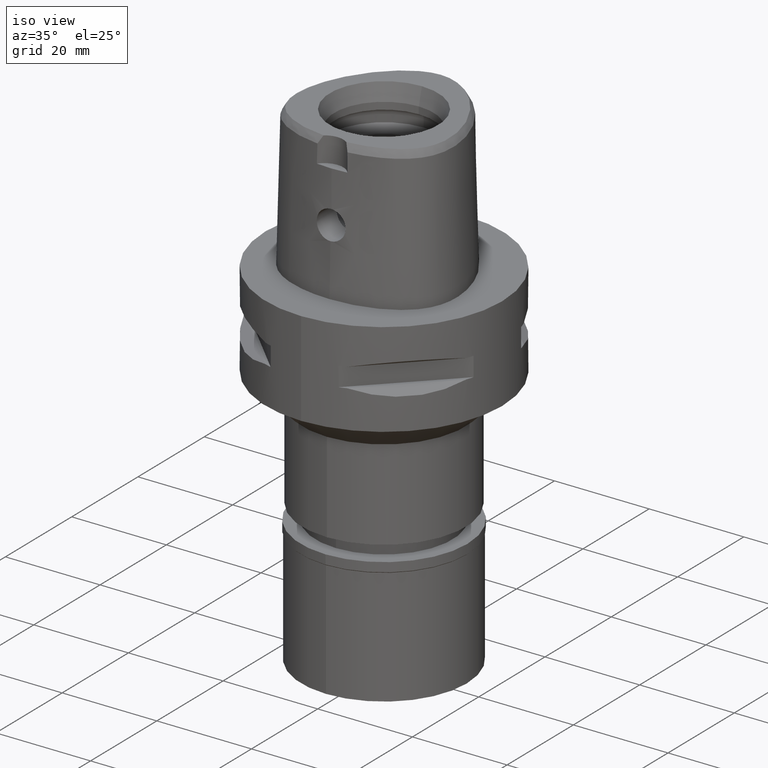
[diagram: clean part render]
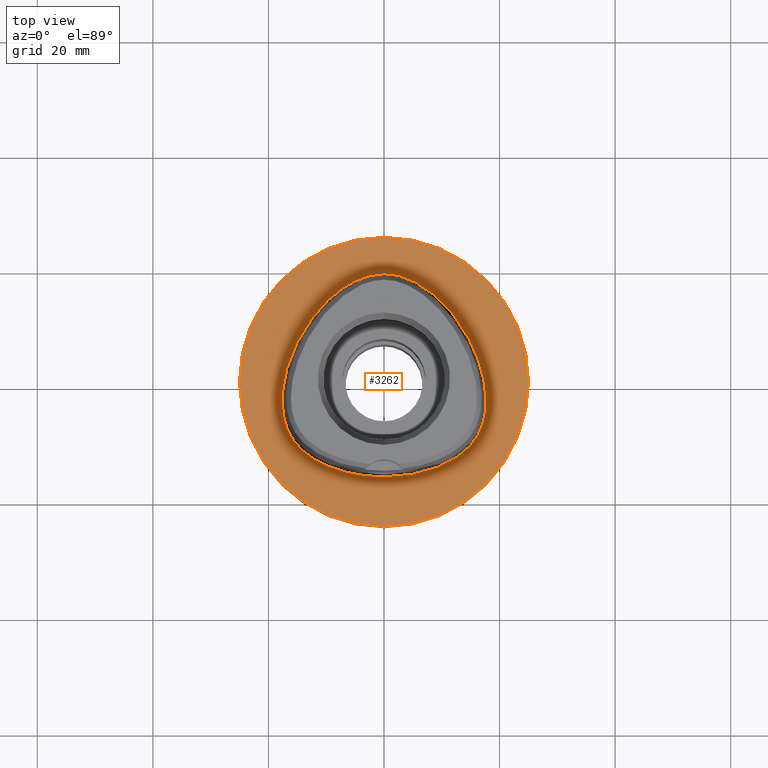
[diagram: tour spotlight — one face highlighted and labeled with its STEP entity id]
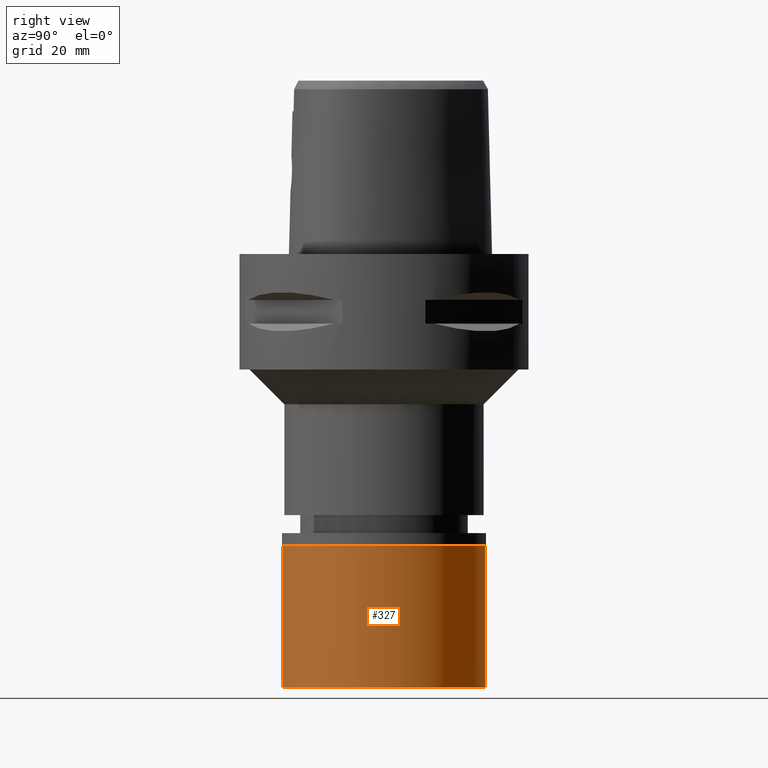
[diagram: tour spotlight — one face highlighted and labeled with its STEP entity id]
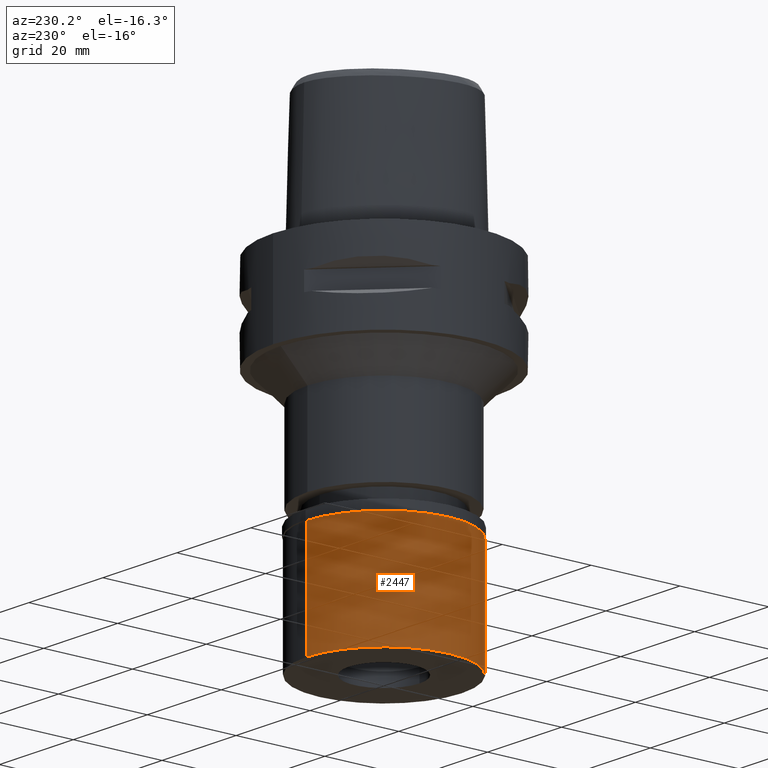
[diagram: tour spotlight — one face highlighted and labeled with its STEP entity id]
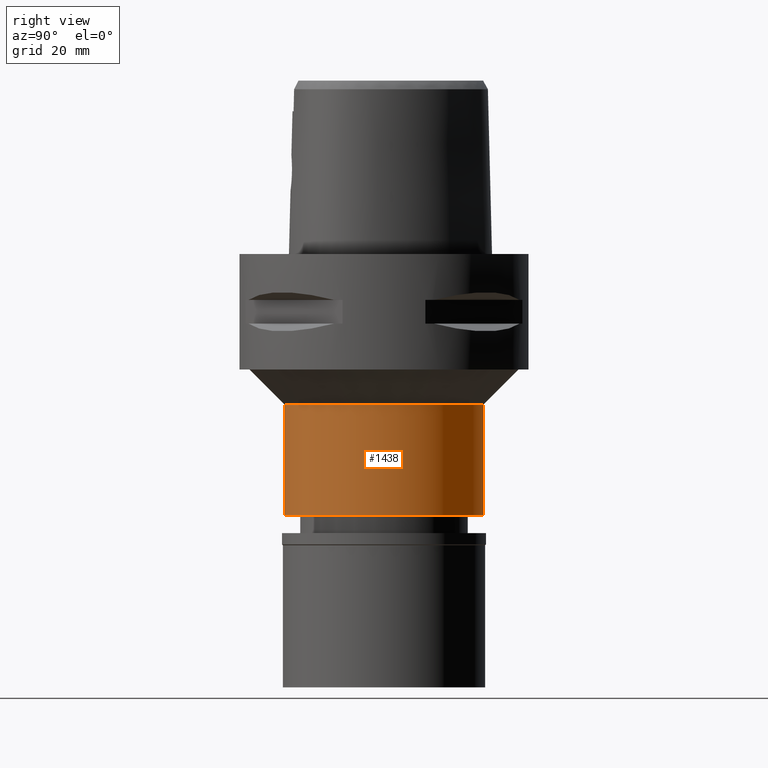
[diagram: tour spotlight — one face highlighted and labeled with its STEP entity id]
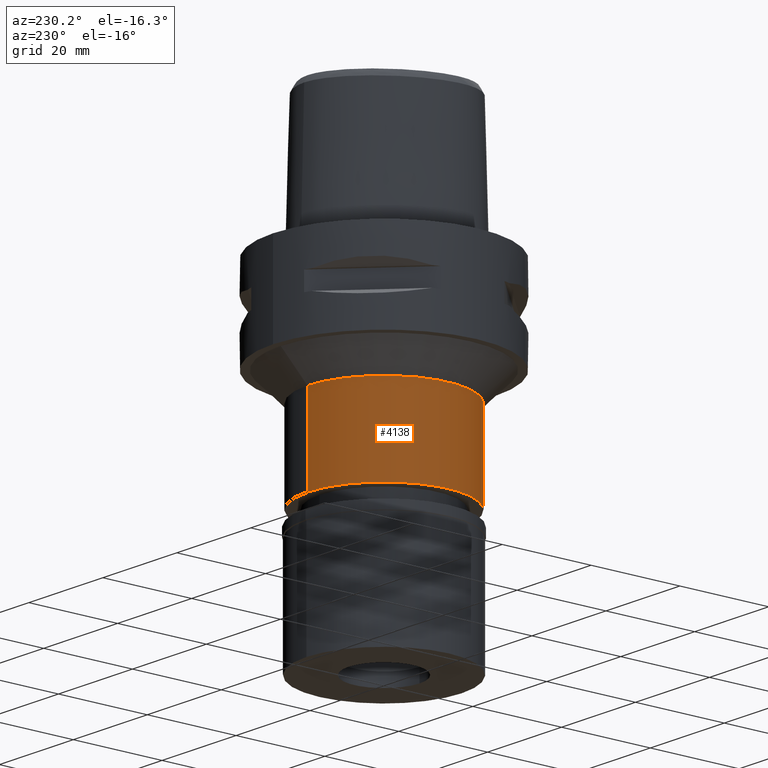
[diagram: tour spotlight — one face highlighted and labeled with its STEP entity id]
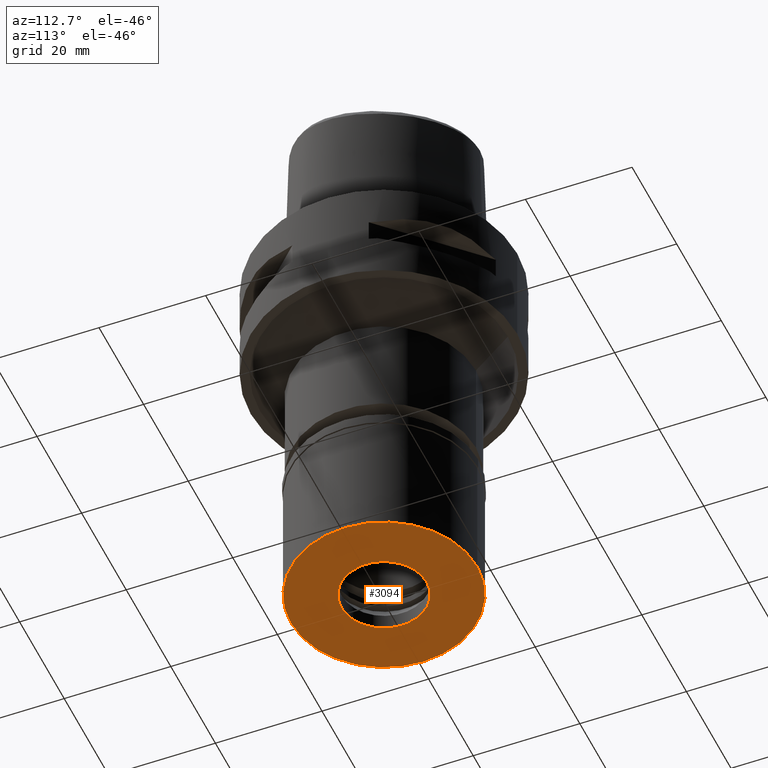
[diagram: tour spotlight — one face highlighted and labeled with its STEP entity id]
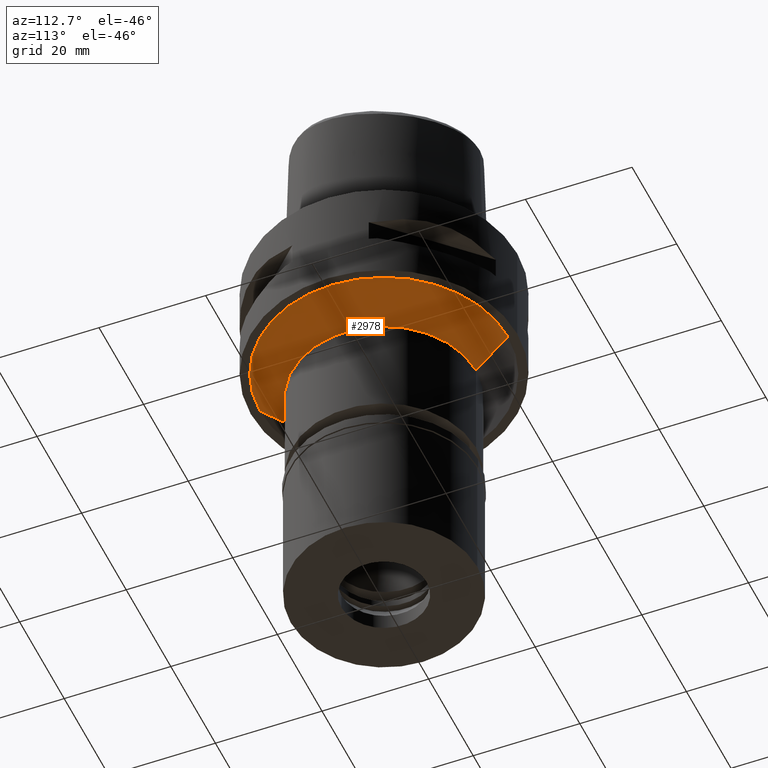
[diagram: tour spotlight — one face highlighted and labeled with its STEP entity id]
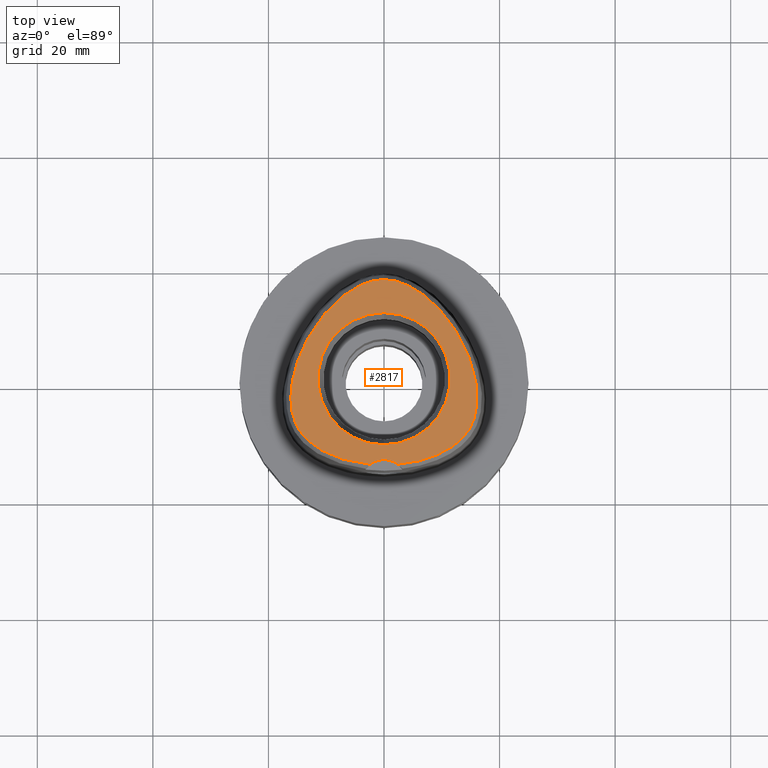
[diagram: tour spotlight — one face highlighted and labeled with its STEP entity id]
A machine part: a face-by-face anatomy tour. The part has 95 B-rep faces; the first image is the clean iso view, then the 8 largest visible faces are spotlighted one at a time (largest first), each with its STEP entity span.

Face 1 — top view, entity #3262. In plain terms, the highlighted planar face has unit normal (0, 0, -1).
Definition (entity closure, byte-faithful):
#8 = CARTESIAN_POINT ( 'NONE',  ( 0.0000000000000000000, 1.263835496719999960E-14, 0.0000000000000000000 ) ) ;
#85 = DIRECTION ( 'NONE',  ( 0.0000000000000000000, 0.0000000000000000000, -1.000000000000000000 ) ) ;
#203 = CARTESIAN_POINT ( 'NONE',  ( -5.051093166073559182, -16.15562499161961796, 3.384101040842732444E-07 ) ) ;
#263 = EDGE_CURVE ( 'NONE', #4775, #1905, #2555, .T. ) ;
#304 = CARTESIAN_POINT ( 'NONE',  ( -15.64884223570876465, -10.21298827626240424, 3.384101040842732444E-07 ) ) ;
#342 = CARTESIAN_POINT ( 'NONE',  ( 16.66912842794410565, -8.445800784161175301, -2.860639501699787507E-07 ) ) ;
#371 = ORIENTED_EDGE ( 'NONE', *, *, #464, .F. ) ;
#372 = DIRECTION ( 'NONE',  ( 0.0000000000000000000, -1.000000000000000000, 0.0000000000000000000 ) ) ;
#388 = CARTESIAN_POINT ( 'NONE',  ( 11.68694516938318984, -13.70394531873696131, -2.860639501699787507E-07 ) ) ;
#409 = VERTEX_POINT ( 'NONE', #4018 ) ;
#464 = EDGE_CURVE ( 'NONE', #1905, #4775, #899, .T. ) ;
#620 = AXIS2_PLACEMENT_3D ( 'NONE', #8, #3789, #3369 ) ;
#628 = CARTESIAN_POINT ( 'NONE',  ( -2.709713399865000121E-11, -16.45499999998999741, 2.311484337270000009E-13 ) ) ;
#716 = CARTESIAN_POINT ( 'NONE',  ( -11.46563507372863278, 12.45218749451456830, 3.384101040842732444E-07 ) ) ;
#732 = CARTESIAN_POINT ( 'NONE',  ( 2.040572359139261494, 18.55015625704944426, -2.860639501699787507E-07 ) ) ;
#778 = CARTESIAN_POINT ( 'NONE',  ( 0.0000000000000000000, 1.263835496719999960E-14, 0.0000000000000000000 ) ) ;
#783 = CARTESIAN_POINT ( 'NONE',  ( 0.0000000000000000000, 1.224646799146999965E-14, 0.0000000000000000000 ) ) ;
#899 = B_SPLINE_CURVE_WITH_KNOTS ( 'NONE', 3,
 ( #2987, #4558, #2627, #4484, #388, #1095, #1159, #2675, #3744, #342, #4507, #3374, #4151, #1859, #3443, #3080, #4871, #4582, #1487, #732, #3007, #2248 ),
 .UNSPECIFIED., .F., .F.,
 ( 4, 1, 1, 1, 1, 1, 1, 1, 1, 1, 1, 1, 1, 1, 1, 1, 1, 1, 1, 4 ),
 ( 0.0000000000000000000, 0.08333333333365000595, 0.1666666666669000263, 0.2083333333334000115, 0.2500000000000999756, 0.2916666666666999919, 0.3125000000000000000, 0.3333333333332000326, 0.3541666666666000163, 0.3749999999998999689, 0.4166666666665000407, 0.4583333333331000015, 0.4999999999996999622, 0.5833333333329000503, 0.6666666666660999718, 0.7499999999993000044, 0.8333333333325000369, 0.9166666666657999896, 0.9583333333322999747, 1.000000000000000000 ),
 .UNSPECIFIED. ) ;
#929 = CARTESIAN_POINT ( 'NONE',  ( -16.20602471230153796, -9.356552730136982632, 3.384101040842732444E-07 ) ) ;
#1095 = CARTESIAN_POINT ( 'NONE',  ( 13.50690093923050483, -12.48264649002049431, -2.860639501699787507E-07 ) ) ;
#1159 = CARTESIAN_POINT ( 'NONE',  ( 14.78833380920766771, -11.28232910650377718, -2.860639501699787507E-07 ) ) ;
#1339 = CARTESIAN_POINT ( 'NONE',  ( -16.51672823979303573, 3.703437497111448540, 3.384101040842732444E-07 ) ) ;
#1487 = CARTESIAN_POINT ( 'NONE',  ( 4.728927209889252303, 17.73480469403178006, -2.860639501699787507E-07 ) ) ;
#1497 = CARTESIAN_POINT ( 'NONE',  ( -16.66912841365246578, -8.445800777806416804, 3.384101040842732444E-07 ) ) ;
#1604 = CIRCLE ( 'NONE', #4830, 25.00000000000000000 ) ;
#1701 = CARTESIAN_POINT ( 'NONE',  ( -14.78833379783276492, -11.28232909571534215, 3.384101040842732444E-07 ) ) ;
#1724 = CARTESIAN_POINT ( 'NONE',  ( -11.68694516164462449, -13.70394530512951015, 3.384101040842732444E-07 ) ) ;
#1859 = CARTESIAN_POINT ( 'NONE',  ( 17.49754713015223828, -0.2285937487443822358, -2.860639501699787507E-07 ) ) ;
#1870 = CARTESIAN_POINT ( 'NONE',  ( -14.38008118953421466, 8.302343745748157033, 3.384101040842732444E-07 ) ) ;
#1905 = VERTEX_POINT ( 'NONE', #628 ) ;
#2248 = CARTESIAN_POINT ( 'NONE',  ( 9.828399247411999670E-11, 18.69499999997000117, 2.298901809656999788E-13 ) ) ;
#2254 = FACE_BOUND ( 'NONE', #4368, .T. ) ;
#2278 = ORIENTED_EDGE ( 'NONE', *, *, #263, .F. ) ;
#2286 = DIRECTION ( 'NONE',  ( 0.0000000000000000000, 1.000000000000000000, 0.0000000000000000000 ) ) ;
#2305 = AXIS2_PLACEMENT_3D ( 'NONE', #783, #3819, #372 ) ;
#2489 = CARTESIAN_POINT ( 'NONE',  ( -0.6801907852557874667, 18.69499999154186298, 3.384101040842732444E-07 ) ) ;
#2555 = B_SPLINE_CURVE_WITH_KNOTS ( 'NONE', 3,
 ( #3703, #2489, #4735, #2610, #2588, #716, #1870, #1339, #2859, #4132, #4376, #3383, #1497, #929, #304, #1701, #2917, #1724, #3210, #203, #3232, #4359 ),
 .UNSPECIFIED., .F., .F.,
 ( 4, 1, 1, 1, 1, 1, 1, 1, 1, 1, 1, 1, 1, 1, 1, 1, 1, 1, 1, 4 ),
 ( 0.0000000000000000000, 0.04166666666859999979, 0.08333333333518000430, 0.1666666666684000209, 0.2500000000015000223, 0.3333333333346999994, 0.4166666666679000319, 0.5000000000009999779, 0.5416666666677000253, 0.5833333333342000104, 0.6250000000008000267, 0.6458333333340999793, 0.6666666666674000430, 0.6875000000006999956, 0.7083333333339000282, 0.7500000000005999645, 0.7916666666671999808, 0.8333333333336999660, 0.9166666666668999985, 1.000000000000000000 ),
 .UNSPECIFIED. ) ;
#2588 = CARTESIAN_POINT ( 'NONE',  ( -7.967839658955781168, 15.83070311828591414, 3.384101040842732444E-07 ) ) ;
#2610 = CARTESIAN_POINT ( 'NONE',  ( -4.728927203180217198, 17.73480467976277097, 3.384101040842732444E-07 ) ) ;
#2627 = CARTESIAN_POINT ( 'NONE',  ( 5.051093168841257253, -16.15562500707442339, -2.860639501699787507E-07 ) ) ;
#2664 = EDGE_CURVE ( 'NONE', #409, #3771, #1604, .T. ) ;
#2675 = CARTESIAN_POINT ( 'NONE',  ( 15.64884224835697069, -10.21298828546812665, -2.860639501699787507E-07 ) ) ;
#2859 = CARTESIAN_POINT ( 'NONE',  ( -17.49754711469449830, -0.2285937514853823016, 3.384101040842732444E-07 ) ) ;
#2917 = CARTESIAN_POINT ( 'NONE',  ( -13.50690092955713517, -12.48264647769880753, 3.384101040842732444E-07 ) ) ;
#2987 = CARTESIAN_POINT ( 'NONE',  ( -2.709713399865000121E-11, -16.45499999998999741, 2.311484337270000009E-13 ) ) ;
#3007 = CARTESIAN_POINT ( 'NONE',  ( 0.6801907863875246152, 18.69500000714770493, -2.860639501699787507E-07 ) ) ;
#3080 = CARTESIAN_POINT ( 'NONE',  ( 14.38008120312584381, 8.302343753592897002, -2.860639501699787507E-07 ) ) ;
#3210 = CARTESIAN_POINT ( 'NONE',  ( -8.946741553283230175, -15.03902342951104387, 3.384101040842732444E-07 ) ) ;
#3232 = CARTESIAN_POINT ( 'NONE',  ( -1.683697722027049259, -16.45499999154253246, 3.384101040842732444E-07 ) ) ;
#3262 = ADVANCED_FACE ( 'NONE', ( #3852, #2254 ), #4196, .F. ) ;
#3369 = DIRECTION ( 'NONE',  ( 0.0000000000000000000, -1.000000000000000000, 0.0000000000000000000 ) ) ;
#3374 = CARTESIAN_POINT ( 'NONE',  ( 17.56373943644036473, -5.455996094767003868, -2.860639501699787507E-07 ) ) ;
#3383 = CARTESIAN_POINT ( 'NONE',  ( -17.16495050966581104, -7.165908200709297127, 3.384101040842732444E-07 ) ) ;
#3420 = ORIENTED_EDGE ( 'NONE', *, *, #3710, .F. ) ;
#3443 = CARTESIAN_POINT ( 'NONE',  ( 16.51672825457122684, 3.703437502441333073, -2.860639501699787507E-07 ) ) ;
#3703 = CARTESIAN_POINT ( 'NONE',  ( 9.828399247411999670E-11, 18.69499999997000117, 2.298901809656999788E-13 ) ) ;
#3710 = EDGE_CURVE ( 'NONE', #3771, #409, #4597, .T. ) ;
#3717 = ORIENTED_EDGE ( 'NONE', *, *, #2664, .F. ) ;
#3744 = CARTESIAN_POINT ( 'NONE',  ( 16.20602472584767995, -9.356552737957340327, -2.860639501699787507E-07 ) ) ;
#3771 = VERTEX_POINT ( 'NONE', #4186 ) ;
#3789 = DIRECTION ( 'NONE',  ( 0.0000000000000000000, 0.0000000000000000000, -1.000000000000000000 ) ) ;
#3819 = DIRECTION ( 'NONE',  ( 0.0000000000000000000, 0.0000000000000000000, -1.000000000000000000 ) ) ;
#3852 = FACE_OUTER_BOUND ( 'NONE', #4612, .T. ) ;
#4018 = CARTESIAN_POINT ( 'NONE',  ( 0.0000000000000000000, 25.00000000000000000, 0.0000000000000000000 ) ) ;
#4132 = CARTESIAN_POINT ( 'NONE',  ( -17.71143734713000839, -3.269218750055012279, 3.384101040842732444E-07 ) ) ;
#4151 = CARTESIAN_POINT ( 'NONE',  ( 17.71143736279276482, -3.269218749953326952, -2.860639501699787507E-07 ) ) ;
#4186 = CARTESIAN_POINT ( 'NONE',  ( 0.0000000000000000000, -25.00000000000000000, 0.0000000000000000000 ) ) ;
#4196 = PLANE ( 'NONE',  #2305 ) ;
#4359 = CARTESIAN_POINT ( 'NONE',  ( -2.709713399865000121E-11, -16.45499999998999741, 2.311484337270000009E-13 ) ) ;
#4368 = EDGE_LOOP ( 'NONE', ( #2278, #371 ) ) ;
#4376 = CARTESIAN_POINT ( 'NONE',  ( -17.56373942092441354, -5.455996092546111953, 3.384101040842732444E-07 ) ) ;
#4484 = CARTESIAN_POINT ( 'NONE',  ( 8.946741558638354519, -15.03902344425822690, -2.860639501699787507E-07 ) ) ;
#4507 = CARTESIAN_POINT ( 'NONE',  ( 17.16495052468975757, -7.165908205167228040, -2.860639501699787507E-07 ) ) ;
#4558 = CARTESIAN_POINT ( 'NONE',  ( 1.683697722938653607, -16.45500000715304978, -2.860639501699786978E-07 ) ) ;
#4582 = CARTESIAN_POINT ( 'NONE',  ( 7.967839668679640219, 15.83070313066680868, -2.860639501699787507E-07 ) ) ;
#4597 = CIRCLE ( 'NONE', #620, 25.00000000000000000 ) ;
#4612 = EDGE_LOOP ( 'NONE', ( #3717, #3420 ) ) ;
#4629 = CARTESIAN_POINT ( 'NONE',  ( 9.828399247411999670E-11, 18.69499999997000117, 2.298901809656999788E-13 ) ) ;
#4735 = CARTESIAN_POINT ( 'NONE',  ( -2.040572355924658243, 18.55015624166023613, 3.384101040842732444E-07 ) ) ;
#4775 = VERTEX_POINT ( 'NONE', #4629 ) ;
#4830 = AXIS2_PLACEMENT_3D ( 'NONE', #778, #85, #2286 ) ;
#4871 = CARTESIAN_POINT ( 'NONE',  ( 11.46563508572885937, 12.45218750464434443, -2.860639501699787507E-07 ) ) ;

Face 2 — right view, entity #327. In plain terms, the highlighted cylindrical surface (partial cylindrical patch) has radius 17.5 mm, axis along (0, 0, -1).
Definition (entity closure, byte-faithful):
#256 = DIRECTION ( 'NONE',  ( 0.0000000000000000000, 0.0000000000000000000, -1.000000000000000000 ) ) ;
#281 = EDGE_CURVE ( 'NONE', #4189, #324, #1746, .T. ) ;
#284 = DIRECTION ( 'NONE',  ( 0.0000000000000000000, 0.0000000000000000000, -1.000000000000000000 ) ) ;
#324 = VERTEX_POINT ( 'NONE', #1371 ) ;
#327 = ADVANCED_FACE ( 'NONE', ( #4715 ), #4067, .T. ) ;
#392 = CARTESIAN_POINT ( 'NONE',  ( 0.0000000000000000000, -17.50000000000000000, -2.100000000000000089 ) ) ;
#460 = EDGE_CURVE ( 'NONE', #4189, #3211, #1998, .T. ) ;
#532 = EDGE_CURVE ( 'NONE', #3211, #2328, #4083, .T. ) ;
#580 = DIRECTION ( 'NONE',  ( 0.0000000000000000000, -1.000000000000000000, 0.0000000000000000000 ) ) ;
#585 = ORIENTED_EDGE ( 'NONE', *, *, #532, .T. ) ;
#1120 = CARTESIAN_POINT ( 'NONE',  ( 0.0000000000000000000, -17.50000000000000000, -2.100000000000000089 ) ) ;
#1155 = EDGE_LOOP ( 'NONE', ( #4717, #585, #3817, #2989 ) ) ;
#1371 = CARTESIAN_POINT ( 'NONE',  ( 0.0000000000000000000, 17.50000000000000000, -26.70000000000000284 ) ) ;
#1464 = DIRECTION ( 'NONE',  ( 0.0000000000000000000, 1.000000000000000000, 0.0000000000000000000 ) ) ;
#1727 = DIRECTION ( 'NONE',  ( 0.0000000000000000000, 0.0000000000000000000, 1.000000000000000000 ) ) ;
#1746 = LINE ( 'NONE', #4739, #2149 ) ;
#1773 = CARTESIAN_POINT ( 'NONE',  ( 0.0000000000000000000, 0.0000000000000000000, 0.0000000000000000000 ) ) ;
#1898 = AXIS2_PLACEMENT_3D ( 'NONE', #4766, #1727, #580 ) ;
#1998 = CIRCLE ( 'NONE', #4617, 17.50000000000000000 ) ;
#2149 = VECTOR ( 'NONE', #256, 1000.000000000000000 ) ;
#2328 = VERTEX_POINT ( 'NONE', #2717 ) ;
#2397 = AXIS2_PLACEMENT_3D ( 'NONE', #1773, #284, #2861 ) ;
#2576 = CARTESIAN_POINT ( 'NONE',  ( 0.0000000000000000000, 0.0000000000000000000, -2.100000000000000089 ) ) ;
#2717 = CARTESIAN_POINT ( 'NONE',  ( 0.0000000000000000000, -17.50000000000000000, -26.70000000000000284 ) ) ;
#2861 = DIRECTION ( 'NONE',  ( 0.0000000000000000000, -1.000000000000000000, 0.0000000000000000000 ) ) ;
#2925 = DIRECTION ( 'NONE',  ( 0.0000000000000000000, 0.0000000000000000000, -1.000000000000000000 ) ) ;
#2934 = CIRCLE ( 'NONE', #1898, 17.50000000000000000 ) ;
#2989 = ORIENTED_EDGE ( 'NONE', *, *, #281, .F. ) ;
#3199 = CARTESIAN_POINT ( 'NONE',  ( 0.0000000000000000000, 17.50000000000000000, -2.100000000000000089 ) ) ;
#3211 = VERTEX_POINT ( 'NONE', #392 ) ;
#3501 = EDGE_CURVE ( 'NONE', #2328, #324, #2934, .T. ) ;
#3701 = DIRECTION ( 'NONE',  ( 0.0000000000000000000, 0.0000000000000000000, -1.000000000000000000 ) ) ;
#3817 = ORIENTED_EDGE ( 'NONE', *, *, #3501, .T. ) ;
#4067 = CYLINDRICAL_SURFACE ( 'NONE', #2397, 17.50000000000000000 ) ;
#4083 = LINE ( 'NONE', #1120, #4687 ) ;
#4189 = VERTEX_POINT ( 'NONE', #3199 ) ;
#4617 = AXIS2_PLACEMENT_3D ( 'NONE', #2576, #2925, #1464 ) ;
#4687 = VECTOR ( 'NONE', #3701, 1000.000000000000000 ) ;
#4715 = FACE_OUTER_BOUND ( 'NONE', #1155, .T. ) ;
#4717 = ORIENTED_EDGE ( 'NONE', *, *, #460, .T. ) ;
#4739 = CARTESIAN_POINT ( 'NONE',  ( 0.0000000000000000000, 17.50000000000000000, -2.100000000000000089 ) ) ;
#4766 = CARTESIAN_POINT ( 'NONE',  ( 0.0000000000000000000, 0.0000000000000000000, -26.70000000000000284 ) ) ;

Face 3 — auxiliary view, entity #2447. In plain terms, the highlighted cylindrical surface (partial cylindrical patch) has radius 17.5 mm, axis along (0, 0, -1).
Definition (entity closure, byte-faithful):
#256 = DIRECTION ( 'NONE',  ( 0.0000000000000000000, 0.0000000000000000000, -1.000000000000000000 ) ) ;
#281 = EDGE_CURVE ( 'NONE', #4189, #324, #1746, .T. ) ;
#324 = VERTEX_POINT ( 'NONE', #1371 ) ;
#392 = CARTESIAN_POINT ( 'NONE',  ( 0.0000000000000000000, -17.50000000000000000, -2.100000000000000089 ) ) ;
#522 = EDGE_CURVE ( 'NONE', #3211, #4189, #3905, .T. ) ;
#532 = EDGE_CURVE ( 'NONE', #3211, #2328, #4083, .T. ) ;
#586 = ORIENTED_EDGE ( 'NONE', *, *, #281, .T. ) ;
#671 = AXIS2_PLACEMENT_3D ( 'NONE', #3063, #4563, #1165 ) ;
#762 = FACE_OUTER_BOUND ( 'NONE', #4243, .T. ) ;
#1120 = CARTESIAN_POINT ( 'NONE',  ( 0.0000000000000000000, -17.50000000000000000, -2.100000000000000089 ) ) ;
#1165 = DIRECTION ( 'NONE',  ( 0.0000000000000000000, -1.000000000000000000, 0.0000000000000000000 ) ) ;
#1371 = CARTESIAN_POINT ( 'NONE',  ( 0.0000000000000000000, 17.50000000000000000, -26.70000000000000284 ) ) ;
#1687 = AXIS2_PLACEMENT_3D ( 'NONE', #1790, #1868, #2585 ) ;
#1746 = LINE ( 'NONE', #4739, #2149 ) ;
#1790 = CARTESIAN_POINT ( 'NONE',  ( 0.0000000000000000000, 0.0000000000000000000, -2.100000000000000089 ) ) ;
#1868 = DIRECTION ( 'NONE',  ( 0.0000000000000000000, 0.0000000000000000000, -1.000000000000000000 ) ) ;
#2149 = VECTOR ( 'NONE', #256, 1000.000000000000000 ) ;
#2198 = ORIENTED_EDGE ( 'NONE', *, *, #2312, .T. ) ;
#2279 = CYLINDRICAL_SURFACE ( 'NONE', #671, 17.50000000000000000 ) ;
#2312 = EDGE_CURVE ( 'NONE', #324, #2328, #2415, .T. ) ;
#2328 = VERTEX_POINT ( 'NONE', #2717 ) ;
#2415 = CIRCLE ( 'NONE', #4635, 17.50000000000000000 ) ;
#2447 = ADVANCED_FACE ( 'NONE', ( #762 ), #2279, .T. ) ;
#2546 = ORIENTED_EDGE ( 'NONE', *, *, #532, .F. ) ;
#2585 = DIRECTION ( 'NONE',  ( 0.0000000000000000000, -1.000000000000000000, 0.0000000000000000000 ) ) ;
#2669 = DIRECTION ( 'NONE',  ( 0.0000000000000000000, 0.0000000000000000000, 1.000000000000000000 ) ) ;
#2717 = CARTESIAN_POINT ( 'NONE',  ( 0.0000000000000000000, -17.50000000000000000, -26.70000000000000284 ) ) ;
#3063 = CARTESIAN_POINT ( 'NONE',  ( 0.0000000000000000000, 0.0000000000000000000, 0.0000000000000000000 ) ) ;
#3199 = CARTESIAN_POINT ( 'NONE',  ( 0.0000000000000000000, 17.50000000000000000, -2.100000000000000089 ) ) ;
#3211 = VERTEX_POINT ( 'NONE', #392 ) ;
#3461 = DIRECTION ( 'NONE',  ( 0.0000000000000000000, 1.000000000000000000, 0.0000000000000000000 ) ) ;
#3701 = DIRECTION ( 'NONE',  ( 0.0000000000000000000, 0.0000000000000000000, -1.000000000000000000 ) ) ;
#3905 = CIRCLE ( 'NONE', #1687, 17.50000000000000000 ) ;
#4083 = LINE ( 'NONE', #1120, #4687 ) ;
#4189 = VERTEX_POINT ( 'NONE', #3199 ) ;
#4210 = CARTESIAN_POINT ( 'NONE',  ( 0.0000000000000000000, 0.0000000000000000000, -26.70000000000000284 ) ) ;
#4243 = EDGE_LOOP ( 'NONE', ( #2198, #2546, #4888, #586 ) ) ;
#4563 = DIRECTION ( 'NONE',  ( 0.0000000000000000000, 0.0000000000000000000, -1.000000000000000000 ) ) ;
#4635 = AXIS2_PLACEMENT_3D ( 'NONE', #4210, #2669, #3461 ) ;
#4687 = VECTOR ( 'NONE', #3701, 1000.000000000000000 ) ;
#4739 = CARTESIAN_POINT ( 'NONE',  ( 0.0000000000000000000, 17.50000000000000000, -2.100000000000000089 ) ) ;
#4888 = ORIENTED_EDGE ( 'NONE', *, *, #522, .T. ) ;

Face 4 — right view, entity #1438. In plain terms, the highlighted cylindrical surface (partial cylindrical patch) has radius 17.25 mm, axis along (0, 0, -1).
Definition (entity closure, byte-faithful):
#41 = EDGE_CURVE ( 'NONE', #347, #3176, #45, .T. ) ;
#45 = LINE ( 'NONE', #3084, #2637 ) ;
#116 = EDGE_CURVE ( 'NONE', #1544, #3176, #729, .T. ) ;
#347 = VERTEX_POINT ( 'NONE', #661 ) ;
#426 = AXIS2_PLACEMENT_3D ( 'NONE', #1317, #526, #1656 ) ;
#477 = EDGE_CURVE ( 'NONE', #347, #3111, #2232, .T. ) ;
#485 = EDGE_LOOP ( 'NONE', ( #1160, #1356, #955, #3712 ) ) ;
#526 = DIRECTION ( 'NONE',  ( 0.0000000000000000000, 0.0000000000000000000, -1.000000000000000000 ) ) ;
#661 = CARTESIAN_POINT ( 'NONE',  ( 0.0000000000000000000, 17.25000000000000000, -26.00000000000000000 ) ) ;
#729 = CIRCLE ( 'NONE', #3663, 17.25000000000000000 ) ;
#809 = DIRECTION ( 'NONE',  ( 0.0000000000000000000, 0.0000000000000000000, -1.000000000000000000 ) ) ;
#955 = ORIENTED_EDGE ( 'NONE', *, *, #116, .T. ) ;
#1098 = CARTESIAN_POINT ( 'NONE',  ( 0.0000000000000000000, 17.25000000000000000, -45.19999999999999574 ) ) ;
#1160 = ORIENTED_EDGE ( 'NONE', *, *, #477, .T. ) ;
#1294 = EDGE_CURVE ( 'NONE', #3111, #1544, #1609, .T. ) ;
#1317 = CARTESIAN_POINT ( 'NONE',  ( 0.0000000000000000000, 1.263835496719999960E-14, 3.200000000000000178 ) ) ;
#1356 = ORIENTED_EDGE ( 'NONE', *, *, #1294, .T. ) ;
#1438 = ADVANCED_FACE ( 'NONE', ( #4334 ), #3163, .T. ) ;
#1514 = CARTESIAN_POINT ( 'NONE',  ( 0.0000000000000000000, 0.0000000000000000000, -26.00000000000000000 ) ) ;
#1540 = DIRECTION ( 'NONE',  ( 0.0000000000000000000, 0.0000000000000000000, 1.000000000000000000 ) ) ;
#1544 = VERTEX_POINT ( 'NONE', #4740 ) ;
#1609 = LINE ( 'NONE', #4286, #3430 ) ;
#1656 = DIRECTION ( 'NONE',  ( 0.0000000000000000000, -1.000000000000000000, 0.0000000000000000000 ) ) ;
#1920 = AXIS2_PLACEMENT_3D ( 'NONE', #1514, #4530, #3845 ) ;
#2232 = CIRCLE ( 'NONE', #1920, 17.25000000000000000 ) ;
#2317 = DIRECTION ( 'NONE',  ( 0.0000000000000000000, 0.0000000000000000000, -1.000000000000000000 ) ) ;
#2637 = VECTOR ( 'NONE', #809, 1000.000000000000000 ) ;
#3084 = CARTESIAN_POINT ( 'NONE',  ( 0.0000000000000000000, 17.25000000000000000, -26.00000000000000000 ) ) ;
#3111 = VERTEX_POINT ( 'NONE', #3297 ) ;
#3163 = CYLINDRICAL_SURFACE ( 'NONE', #426, 17.25000000000000000 ) ;
#3176 = VERTEX_POINT ( 'NONE', #1098 ) ;
#3297 = CARTESIAN_POINT ( 'NONE',  ( 0.0000000000000000000, -17.25000000000000000, -26.00000000000000000 ) ) ;
#3430 = VECTOR ( 'NONE', #2317, 1000.000000000000000 ) ;
#3663 = AXIS2_PLACEMENT_3D ( 'NONE', #4504, #1540, #4170 ) ;
#3712 = ORIENTED_EDGE ( 'NONE', *, *, #41, .F. ) ;
#3845 = DIRECTION ( 'NONE',  ( 0.0000000000000000000, 1.000000000000000000, 0.0000000000000000000 ) ) ;
#4170 = DIRECTION ( 'NONE',  ( 0.0000000000000000000, -1.000000000000000000, 0.0000000000000000000 ) ) ;
#4286 = CARTESIAN_POINT ( 'NONE',  ( 0.0000000000000000000, -17.25000000000000000, -26.00000000000000000 ) ) ;
#4334 = FACE_OUTER_BOUND ( 'NONE', #485, .T. ) ;
#4504 = CARTESIAN_POINT ( 'NONE',  ( 0.0000000000000000000, 1.263835496719999960E-14, -45.19999999999999574 ) ) ;
#4530 = DIRECTION ( 'NONE',  ( 0.0000000000000000000, 0.0000000000000000000, -1.000000000000000000 ) ) ;
#4740 = CARTESIAN_POINT ( 'NONE',  ( 0.0000000000000000000, -17.25000000000000000, -45.19999999999999574 ) ) ;

Face 5 — auxiliary view, entity #4138. In plain terms, the highlighted cylindrical surface (partial cylindrical patch) has radius 17.25 mm, axis along (0, 0, -1).
Definition (entity closure, byte-faithful):
#41 = EDGE_CURVE ( 'NONE', #347, #3176, #45, .T. ) ;
#45 = LINE ( 'NONE', #3084, #2637 ) ;
#274 = CARTESIAN_POINT ( 'NONE',  ( 0.0000000000000000000, 1.263835496719999960E-14, 3.200000000000000178 ) ) ;
#347 = VERTEX_POINT ( 'NONE', #661 ) ;
#639 = FACE_OUTER_BOUND ( 'NONE', #3615, .T. ) ;
#661 = CARTESIAN_POINT ( 'NONE',  ( 0.0000000000000000000, 17.25000000000000000, -26.00000000000000000 ) ) ;
#809 = DIRECTION ( 'NONE',  ( 0.0000000000000000000, 0.0000000000000000000, -1.000000000000000000 ) ) ;
#1098 = CARTESIAN_POINT ( 'NONE',  ( 0.0000000000000000000, 17.25000000000000000, -45.19999999999999574 ) ) ;
#1288 = CYLINDRICAL_SURFACE ( 'NONE', #4829, 17.25000000000000000 ) ;
#1294 = EDGE_CURVE ( 'NONE', #3111, #1544, #1609, .T. ) ;
#1544 = VERTEX_POINT ( 'NONE', #4740 ) ;
#1609 = LINE ( 'NONE', #4286, #3430 ) ;
#1789 = DIRECTION ( 'NONE',  ( 0.0000000000000000000, 0.0000000000000000000, -1.000000000000000000 ) ) ;
#1803 = CARTESIAN_POINT ( 'NONE',  ( 0.0000000000000000000, 0.0000000000000000000, -26.00000000000000000 ) ) ;
#1822 = DIRECTION ( 'NONE',  ( 0.0000000000000000000, 1.000000000000000000, 0.0000000000000000000 ) ) ;
#1848 = DIRECTION ( 'NONE',  ( 0.0000000000000000000, 0.0000000000000000000, 1.000000000000000000 ) ) ;
#2054 = AXIS2_PLACEMENT_3D ( 'NONE', #1803, #4410, #4361 ) ;
#2175 = ORIENTED_EDGE ( 'NONE', *, *, #3787, .T. ) ;
#2317 = DIRECTION ( 'NONE',  ( 0.0000000000000000000, 0.0000000000000000000, -1.000000000000000000 ) ) ;
#2456 = CIRCLE ( 'NONE', #4593, 17.25000000000000000 ) ;
#2637 = VECTOR ( 'NONE', #809, 1000.000000000000000 ) ;
#2777 = ORIENTED_EDGE ( 'NONE', *, *, #3541, .T. ) ;
#2808 = ORIENTED_EDGE ( 'NONE', *, *, #41, .T. ) ;
#2809 = DIRECTION ( 'NONE',  ( 0.0000000000000000000, -1.000000000000000000, 0.0000000000000000000 ) ) ;
#3084 = CARTESIAN_POINT ( 'NONE',  ( 0.0000000000000000000, 17.25000000000000000, -26.00000000000000000 ) ) ;
#3111 = VERTEX_POINT ( 'NONE', #3297 ) ;
#3176 = VERTEX_POINT ( 'NONE', #1098 ) ;
#3297 = CARTESIAN_POINT ( 'NONE',  ( 0.0000000000000000000, -17.25000000000000000, -26.00000000000000000 ) ) ;
#3430 = VECTOR ( 'NONE', #2317, 1000.000000000000000 ) ;
#3541 = EDGE_CURVE ( 'NONE', #3111, #347, #3566, .T. ) ;
#3566 = CIRCLE ( 'NONE', #2054, 17.25000000000000000 ) ;
#3615 = EDGE_LOOP ( 'NONE', ( #2175, #3774, #2777, #2808 ) ) ;
#3774 = ORIENTED_EDGE ( 'NONE', *, *, #1294, .F. ) ;
#3787 = EDGE_CURVE ( 'NONE', #3176, #1544, #2456, .T. ) ;
#3805 = CARTESIAN_POINT ( 'NONE',  ( 0.0000000000000000000, 1.263835496719999960E-14, -45.19999999999999574 ) ) ;
#4138 = ADVANCED_FACE ( 'NONE', ( #639 ), #1288, .T. ) ;
#4286 = CARTESIAN_POINT ( 'NONE',  ( 0.0000000000000000000, -17.25000000000000000, -26.00000000000000000 ) ) ;
#4361 = DIRECTION ( 'NONE',  ( 0.0000000000000000000, -1.000000000000000000, 0.0000000000000000000 ) ) ;
#4410 = DIRECTION ( 'NONE',  ( 0.0000000000000000000, 0.0000000000000000000, -1.000000000000000000 ) ) ;
#4593 = AXIS2_PLACEMENT_3D ( 'NONE', #3805, #1848, #1822 ) ;
#4740 = CARTESIAN_POINT ( 'NONE',  ( 0.0000000000000000000, -17.25000000000000000, -45.19999999999999574 ) ) ;
#4829 = AXIS2_PLACEMENT_3D ( 'NONE', #274, #1789, #2809 ) ;

Face 6 — auxiliary view, entity #3094. In plain terms, the highlighted planar face has unit normal (0, 0, -1).
Definition (entity closure, byte-faithful):
#35 = ORIENTED_EDGE ( 'NONE', *, *, #2312, .F. ) ;
#238 = AXIS2_PLACEMENT_3D ( 'NONE', #2581, #2413, #4051 ) ;
#324 = VERTEX_POINT ( 'NONE', #1371 ) ;
#429 = CIRCLE ( 'NONE', #2160, 8.000000000000000000 ) ;
#580 = DIRECTION ( 'NONE',  ( 0.0000000000000000000, -1.000000000000000000, 0.0000000000000000000 ) ) ;
#933 = EDGE_LOOP ( 'NONE', ( #35, #4487 ) ) ;
#948 = DIRECTION ( 'NONE',  ( 0.0000000000000000000, -1.000000000000000000, 0.0000000000000000000 ) ) ;
#1002 = CARTESIAN_POINT ( 'NONE',  ( 0.0000000000000000000, 8.000000000000000000, -26.70000000000000284 ) ) ;
#1072 = VERTEX_POINT ( 'NONE', #1785 ) ;
#1073 = FACE_BOUND ( 'NONE', #1624, .T. ) ;
#1371 = CARTESIAN_POINT ( 'NONE',  ( 0.0000000000000000000, 17.50000000000000000, -26.70000000000000284 ) ) ;
#1415 = EDGE_CURVE ( 'NONE', #2285, #1072, #3912, .T. ) ;
#1569 = ORIENTED_EDGE ( 'NONE', *, *, #1737, .F. ) ;
#1624 = EDGE_LOOP ( 'NONE', ( #1876, #1569 ) ) ;
#1727 = DIRECTION ( 'NONE',  ( 0.0000000000000000000, 0.0000000000000000000, 1.000000000000000000 ) ) ;
#1737 = EDGE_CURVE ( 'NONE', #1072, #2285, #429, .T. ) ;
#1785 = CARTESIAN_POINT ( 'NONE',  ( 0.0000000000000000000, -8.000000000000000000, -26.70000000000000284 ) ) ;
#1876 = ORIENTED_EDGE ( 'NONE', *, *, #1415, .F. ) ;
#1898 = AXIS2_PLACEMENT_3D ( 'NONE', #4766, #1727, #580 ) ;
#2081 = AXIS2_PLACEMENT_3D ( 'NONE', #4710, #4666, #2814 ) ;
#2160 = AXIS2_PLACEMENT_3D ( 'NONE', #4691, #2815, #948 ) ;
#2200 = FACE_OUTER_BOUND ( 'NONE', #933, .T. ) ;
#2285 = VERTEX_POINT ( 'NONE', #1002 ) ;
#2312 = EDGE_CURVE ( 'NONE', #324, #2328, #2415, .T. ) ;
#2328 = VERTEX_POINT ( 'NONE', #2717 ) ;
#2413 = DIRECTION ( 'NONE',  ( 0.0000000000000000000, 0.0000000000000000000, -1.000000000000000000 ) ) ;
#2415 = CIRCLE ( 'NONE', #4635, 17.50000000000000000 ) ;
#2581 = CARTESIAN_POINT ( 'NONE',  ( 0.0000000000000000000, 0.0000000000000000000, -26.70000000000000284 ) ) ;
#2669 = DIRECTION ( 'NONE',  ( 0.0000000000000000000, 0.0000000000000000000, 1.000000000000000000 ) ) ;
#2717 = CARTESIAN_POINT ( 'NONE',  ( 0.0000000000000000000, -17.50000000000000000, -26.70000000000000284 ) ) ;
#2814 = DIRECTION ( 'NONE',  ( 0.0000000000000000000, 1.000000000000000000, 0.0000000000000000000 ) ) ;
#2815 = DIRECTION ( 'NONE',  ( 0.0000000000000000000, 0.0000000000000000000, -1.000000000000000000 ) ) ;
#2934 = CIRCLE ( 'NONE', #1898, 17.50000000000000000 ) ;
#3094 = ADVANCED_FACE ( 'NONE', ( #2200, #1073 ), #4329, .T. ) ;
#3461 = DIRECTION ( 'NONE',  ( 0.0000000000000000000, 1.000000000000000000, 0.0000000000000000000 ) ) ;
#3501 = EDGE_CURVE ( 'NONE', #2328, #324, #2934, .T. ) ;
#3912 = CIRCLE ( 'NONE', #2081, 8.000000000000000000 ) ;
#4051 = DIRECTION ( 'NONE',  ( 0.0000000000000000000, -1.000000000000000000, 0.0000000000000000000 ) ) ;
#4210 = CARTESIAN_POINT ( 'NONE',  ( 0.0000000000000000000, 0.0000000000000000000, -26.70000000000000284 ) ) ;
#4329 = PLANE ( 'NONE',  #238 ) ;
#4487 = ORIENTED_EDGE ( 'NONE', *, *, #3501, .F. ) ;
#4635 = AXIS2_PLACEMENT_3D ( 'NONE', #4210, #2669, #3461 ) ;
#4666 = DIRECTION ( 'NONE',  ( 0.0000000000000000000, 0.0000000000000000000, -1.000000000000000000 ) ) ;
#4691 = CARTESIAN_POINT ( 'NONE',  ( 0.0000000000000000000, 0.0000000000000000000, -26.70000000000000284 ) ) ;
#4710 = CARTESIAN_POINT ( 'NONE',  ( 0.0000000000000000000, 0.0000000000000000000, -26.70000000000000284 ) ) ;
#4766 = CARTESIAN_POINT ( 'NONE',  ( 0.0000000000000000000, 0.0000000000000000000, -26.70000000000000284 ) ) ;

Face 7 — auxiliary view, entity #2978. In plain terms, the highlighted conical surface has half-angle 45 deg.
Definition (entity closure, byte-faithful):
#242 = DIRECTION ( 'NONE',  ( 0.0000000000000000000, 0.0000000000000000000, 1.000000000000000000 ) ) ;
#347 = VERTEX_POINT ( 'NONE', #661 ) ;
#393 = ORIENTED_EDGE ( 'NONE', *, *, #2103, .T. ) ;
#477 = EDGE_CURVE ( 'NONE', #347, #3111, #2232, .T. ) ;
#618 = CARTESIAN_POINT ( 'NONE',  ( 0.0000000000000000000, 23.25000000000000000, -20.00000000000000000 ) ) ;
#627 = DIRECTION ( 'NONE',  ( 0.0000000000000000000, 0.0000000000000000000, -1.000000000000000000 ) ) ;
#661 = CARTESIAN_POINT ( 'NONE',  ( 0.0000000000000000000, 17.25000000000000000, -26.00000000000000000 ) ) ;
#1096 = ORIENTED_EDGE ( 'NONE', *, *, #477, .F. ) ;
#1192 = VECTOR ( 'NONE', #3289, 1000.000000000000114 ) ;
#1340 = LINE ( 'NONE', #618, #1702 ) ;
#1514 = CARTESIAN_POINT ( 'NONE',  ( 0.0000000000000000000, 0.0000000000000000000, -26.00000000000000000 ) ) ;
#1702 = VECTOR ( 'NONE', #4093, 1000.000000000000114 ) ;
#1728 = CARTESIAN_POINT ( 'NONE',  ( 0.0000000000000000000, 0.0000000000000000000, -20.00000000000000000 ) ) ;
#1749 = VERTEX_POINT ( 'NONE', #2937 ) ;
#1759 = EDGE_LOOP ( 'NONE', ( #393, #2582, #1096, #1930 ) ) ;
#1920 = AXIS2_PLACEMENT_3D ( 'NONE', #1514, #4530, #3845 ) ;
#1930 = ORIENTED_EDGE ( 'NONE', *, *, #2594, .F. ) ;
#2103 = EDGE_CURVE ( 'NONE', #1749, #4052, #4780, .T. ) ;
#2232 = CIRCLE ( 'NONE', #1920, 17.25000000000000000 ) ;
#2516 = CARTESIAN_POINT ( 'NONE',  ( 0.0000000000000000000, -23.25000000000000000, -20.00000000000000000 ) ) ;
#2525 = DIRECTION ( 'NONE',  ( 0.0000000000000000000, 1.000000000000000000, 0.0000000000000000000 ) ) ;
#2540 = DIRECTION ( 'NONE',  ( 0.0000000000000000000, 1.000000000000000000, 0.0000000000000000000 ) ) ;
#2582 = ORIENTED_EDGE ( 'NONE', *, *, #3572, .T. ) ;
#2594 = EDGE_CURVE ( 'NONE', #1749, #347, #1340, .T. ) ;
#2937 = CARTESIAN_POINT ( 'NONE',  ( 0.0000000000000000000, 23.25000000000000000, -20.00000000000000000 ) ) ;
#2978 = ADVANCED_FACE ( 'NONE', ( #4462 ), #3813, .T. ) ;
#3111 = VERTEX_POINT ( 'NONE', #3297 ) ;
#3179 = CARTESIAN_POINT ( 'NONE',  ( 0.0000000000000000000, 0.0000000000000000000, -23.00000000000000000 ) ) ;
#3289 = DIRECTION ( 'NONE',  ( 0.0000000000000000000, 0.7071067811865474617, -0.7071067811865474617 ) ) ;
#3297 = CARTESIAN_POINT ( 'NONE',  ( 0.0000000000000000000, -17.25000000000000000, -26.00000000000000000 ) ) ;
#3572 = EDGE_CURVE ( 'NONE', #4052, #3111, #4741, .T. ) ;
#3576 = AXIS2_PLACEMENT_3D ( 'NONE', #3179, #242, #2525 ) ;
#3813 = CONICAL_SURFACE ( 'NONE', #3576, 20.25000000000000000, 0.7853981633972997312 ) ;
#3845 = DIRECTION ( 'NONE',  ( 0.0000000000000000000, 1.000000000000000000, 0.0000000000000000000 ) ) ;
#4052 = VERTEX_POINT ( 'NONE', #4681 ) ;
#4093 = DIRECTION ( 'NONE',  ( 0.0000000000000000000, -0.7071067811865474617, -0.7071067811865474617 ) ) ;
#4462 = FACE_OUTER_BOUND ( 'NONE', #1759, .T. ) ;
#4469 = AXIS2_PLACEMENT_3D ( 'NONE', #1728, #627, #2540 ) ;
#4530 = DIRECTION ( 'NONE',  ( 0.0000000000000000000, 0.0000000000000000000, -1.000000000000000000 ) ) ;
#4681 = CARTESIAN_POINT ( 'NONE',  ( 0.0000000000000000000, -23.25000000000000000, -20.00000000000000000 ) ) ;
#4741 = LINE ( 'NONE', #2516, #1192 ) ;
#4780 = CIRCLE ( 'NONE', #4469, 23.25000000000000000 ) ;

Face 8 — top view, entity #2817. In plain terms, the highlighted planar face has unit normal (0, 0, 1).
Definition (entity closure, byte-faithful):
#4 = CARTESIAN_POINT ( 'NONE',  ( 10.27891984618132604, 11.24296481357552935, 29.99999999999815969 ) ) ;
#31 = CARTESIAN_POINT ( 'NONE',  ( -16.12543283908878777, -3.535877041748217042, 30.00000000000400036 ) ) ;
#54 = CARTESIAN_POINT ( 'NONE',  ( -6.862723739080417218, 14.51536572208935638, 30.00000000000223466 ) ) ;
#75 = CIRCLE ( 'NONE', #1825, 11.43782217350000074 ) ;
#80 = CARTESIAN_POINT ( 'NONE',  ( 13.19176257967230370, -10.65479018522742471, 30.00000000000392220 ) ) ;
#105 = CARTESIAN_POINT ( 'NONE',  ( -15.99949242929687365, -5.153835065648507907, 29.99999999999942446 ) ) ;
#106 = CARTESIAN_POINT ( 'NONE',  ( 14.08238499152157353, -9.704590128438942642, 29.99999999999480238 ) ) ;
#126 = ORIENTED_EDGE ( 'NONE', *, *, #2740, .F. ) ;
#129 = DIRECTION ( 'NONE',  ( 0.6016359810410799591, 0.7987703964949736113, 0.0000000000000000000 ) ) ;
#132 = CARTESIAN_POINT ( 'NONE',  ( -0.1909045559979790641, 17.15328888648438266, 29.99999999999943512 ) ) ;
#186 = CARTESIAN_POINT ( 'NONE',  ( 10.60500548643626395, -12.49469941440353971, 29.99999999999730704 ) ) ;
#282 = FACE_BOUND ( 'NONE', #4391, .T. ) ;
#326 = DIRECTION ( 'NONE',  ( 0.0000000000000000000, -1.000000000000000000, 0.0000000000000000000 ) ) ;
#383 = VERTEX_POINT ( 'NONE', #2521 ) ;
#406 = CARTESIAN_POINT ( 'NONE',  ( 14.01089202938548262, 5.377385268371929428, 29.99999999999505462 ) ) ;
#476 = CARTESIAN_POINT ( 'NONE',  ( -9.420854217683592324, 12.20577134110195239, 29.99999999999547740 ) ) ;
#500 = CARTESIAN_POINT ( 'NONE',  ( -3.771910472264195402, 16.33551310926454292, 29.99999999999515765 ) ) ;
#501 = FACE_OUTER_BOUND ( 'NONE', #3968, .T. ) ;
#524 = CARTESIAN_POINT ( 'NONE',  ( -8.556928701964627848, 13.07433695899071857, 29.99999999999539924 ) ) ;
#555 = CARTESIAN_POINT ( 'NONE',  ( 5.446614459517526541, -14.35518554872677477, 30.00000000000395417 ) ) ;
#679 = CARTESIAN_POINT ( 'NONE',  ( 1.774127352511021938, 16.97169788998691331, 29.99999999999850075 ) ) ;
#703 = CARTESIAN_POINT ( 'NONE',  ( -2.535517866335831982, -14.79323888261528275, 29.99999999999807088 ) ) ;
#745 = VERTEX_POINT ( 'NONE', #2732 ) ;
#750 = CARTESIAN_POINT ( 'NONE',  ( -3.123276563984345611, -14.73562494724924399, 29.99999999999898392 ) ) ;
#763 = DIRECTION ( 'NONE',  ( 0.0000000000000000000, 0.0000000000000000000, 1.000000000000000000 ) ) ;
#793 = CARTESIAN_POINT ( 'NONE',  ( -4.498660734198124622, 15.99814720005736390, 29.99999999999430500 ) ) ;
#795 = CARTESIAN_POINT ( 'NONE',  ( 15.99982784346170739, -5.151471542954879190, 29.99999999999756994 ) ) ;
#823 = CARTESIAN_POINT ( 'NONE',  ( -15.68979199461825047, 0.4896967076515132966, 29.99999999999829825 ) ) ;
#849 = CARTESIAN_POINT ( 'NONE',  ( -14.55898035933854828, 4.112421202110904339, 29.99999999999586464 ) ) ;
#850 = CARTESIAN_POINT ( 'NONE',  ( 16.04058509949298994, -1.654113685488309393, 30.00000000000271072 ) ) ;
#876 = CARTESIAN_POINT ( 'NONE',  ( -3.077178008231504336, 16.60571267458096401, 30.00000000000176570 ) ) ;
#1106 = CARTESIAN_POINT ( 'NONE',  ( -8.809985523415360120, -13.33678107331758689, 29.99999999999652189 ) ) ;
#1173 = CARTESIAN_POINT ( 'NONE',  ( -10.27907733182107819, 11.24278573582839691, 29.99999999999050004 ) ) ;
#1174 = CARTESIAN_POINT ( 'NONE',  ( 15.71128456931870154, -6.534031654963265545, 30.00000000000413891 ) ) ;
#1199 = CARTESIAN_POINT ( 'NONE',  ( -14.76322153899281986, -8.744676018998088551, 30.00000000000078515 ) ) ;
#1229 = CARTESIAN_POINT ( 'NONE',  ( 12.68590586677069609, 7.870511070826045064, 30.00000000000783729 ) ) ;
#1241 = CARTESIAN_POINT ( 'NONE',  ( -6.301949014203000876E-11, 17.15328888647999861, 30.00000000000000000 ) ) ;
#1252 = CARTESIAN_POINT ( 'NONE',  ( -15.90223487644082745, -0.6162487013688328075, 29.99999999999291234 ) ) ;
#1274 = CARTESIAN_POINT ( 'NONE',  ( -15.87300767659995060, -5.872112237378827260, 29.99999999999610267 ) ) ;
#1323 = CARTESIAN_POINT ( 'NONE',  ( -2.406542353497000075, -14.80491723099000012, 30.00000000000000000 ) ) ;
#1328 = ORIENTED_EDGE ( 'NONE', *, *, #4294, .F. ) ;
#1348 = CARTESIAN_POINT ( 'NONE',  ( 6.658132732488755146, -14.05774790739313396, 29.99999999999475264 ) ) ;
#1379 = CARTESIAN_POINT ( 'NONE',  ( 9.755668685253079175, -12.92551394022864741, 29.99999999999875300 ) ) ;
#1435 = AXIS2_PLACEMENT_3D ( 'NONE', #2612, #1820, #2939 ) ;
#1489 = ORIENTED_EDGE ( 'NONE', *, *, #3677, .F. ) ;
#1523 = AXIS2_PLACEMENT_3D ( 'NONE', #4157, #763, #326 ) ;
#1559 = CARTESIAN_POINT ( 'NONE',  ( -15.02099409651014383, 2.867135356160593229, 30.00000000000099476 ) ) ;
#1561 = CARTESIAN_POINT ( 'NONE',  ( 15.90185233182218560, -0.6139199331563315321, 29.99999999999624123 ) ) ;
#1584 = CARTESIAN_POINT ( 'NONE',  ( -1.772880577021617166, 16.97196055715872021, 29.99999999999690559 ) ) ;
#1630 = CARTESIAN_POINT ( 'NONE',  ( 12.65514534657010870, -11.12483370674388539, 30.00000000000622435 ) ) ;
#1652 = CARTESIAN_POINT ( 'NONE',  ( -13.18915979441540109, -10.65722997876306266, 29.99999999999783995 ) ) ;
#1709 = CARTESIAN_POINT ( 'NONE',  ( 3.130495111450372292, -14.73481892792235826, 30.00000000000054001 ) ) ;
#1820 = DIRECTION ( 'NONE',  ( 0.0000000000000000000, 0.0000000000000000000, 1.000000000000000000 ) ) ;
#1823 = CARTESIAN_POINT ( 'NONE',  ( 2.412811123805184366, 16.81558681050076132, 30.00000000000677147 ) ) ;
#1825 = AXIS2_PLACEMENT_3D ( 'NONE', #3314, #2539, #3590 ) ;
#1872 = CARTESIAN_POINT ( 'NONE',  ( -2.406542353497000075, -14.80491723099000012, 30.00000000000000000 ) ) ;
#1889 = EDGE_CURVE ( 'NONE', #3378, #3613, #4331, .T. ) ;
#1893 = CARTESIAN_POINT ( 'NONE',  ( 15.39668103801956889, 1.657188505494951114, 30.00000000000192912 ) ) ;
#1915 = CARTESIAN_POINT ( 'NONE',  ( -5.437876102061157901, -14.35707869330969366, 29.99999999999858957 ) ) ;
#1917 = CARTESIAN_POINT ( 'NONE',  ( 16.08569500455337220, -4.373922630229425401, 30.00000000000307310 ) ) ;
#1946 = CARTESIAN_POINT ( 'NONE',  ( -13.38439869301853591, 6.635703175839833712, 29.99999999999796074 ) ) ;
#1967 = CARTESIAN_POINT ( 'NONE',  ( -11.92713521269540777, 9.060544494662952530, 29.99999999999209521 ) ) ;
#1968 = CARTESIAN_POINT ( 'NONE',  ( 6.048015628560971635, 15.09357031580093356, 30.00000000000125766 ) ) ;
#1990 = CARTESIAN_POINT ( 'NONE',  ( -16.08550869466544242, -4.376322360225818997, 30.00000000000597922 ) ) ;
#2013 = CARTESIAN_POINT ( 'NONE',  ( 0.0000000000000000000, -18.00000000000000000, 30.00000000000000000 ) ) ;
#2019 = CARTESIAN_POINT ( 'NONE',  ( -15.51623783591133510, -7.150856098906091418, 29.99999999999397460 ) ) ;
#2094 = CARTESIAN_POINT ( 'NONE',  ( 4.159771979224907490, -14.59766906204689896, 30.00000000000261835 ) ) ;
#2209 = CARTESIAN_POINT ( 'NONE',  ( -6.650243356160459918, -14.05992414833404069, 30.00000000000570211 ) ) ;
#2210 = CARTESIAN_POINT ( 'NONE',  ( 0.1912597614439849325, 17.15328888648524952, 30.00000000000273204 ) ) ;
#2265 = CARTESIAN_POINT ( 'NONE',  ( -12.04571048959665447, -11.59259605427416950, 29.99999999999663913 ) ) ;
#2313 = CARTESIAN_POINT ( 'NONE',  ( -1.160151454487921008, 17.07862209882807036, 29.99999999999545253 ) ) ;
#2314 = CARTESIAN_POINT ( 'NONE',  ( 15.29323375805018692, -7.718923543002935261, 29.99999999999811706 ) ) ;
#2341 = CARTESIAN_POINT ( 'NONE',  ( 7.700998872106594284, 13.84384558891314398, 30.00000000000003553 ) ) ;
#2363 = CARTESIAN_POINT ( 'NONE',  ( -16.04083576397720279, -1.656498942829347509, 30.00000000000131806 ) ) ;
#2364 = CARTESIAN_POINT ( 'NONE',  ( 15.04259016984776132, -8.247723288183223644, 30.00000000000668621 ) ) ;
#2389 = CARTESIAN_POINT ( 'NONE',  ( -15.04149970408116310, -8.249836848500459396, 30.00000000000304468 ) ) ;
#2414 = CARTESIAN_POINT ( 'NONE',  ( -15.39727819201209158, 1.655076005305291309, 29.99999999999932854 ) ) ;
#2521 = CARTESIAN_POINT ( 'NONE',  ( 0.0000000000000000000, 11.43782217350000074, 30.00000000000000000 ) ) ;
#2539 = DIRECTION ( 'NONE',  ( 0.0000000000000000000, 0.0000000000000000000, 1.000000000000000000 ) ) ;
#2564 = CARTESIAN_POINT ( 'NONE',  ( -6.301949014203000876E-11, 17.15328888647999861, 30.00000000000000000 ) ) ;
#2612 = CARTESIAN_POINT ( 'NONE',  ( 0.0000000000000000000, 0.0000000000000000000, 30.00000000000000000 ) ) ;
#2642 = CARTESIAN_POINT ( 'NONE',  ( -11.36350786441920313, -12.05063008428691518, 29.99999999999066702 ) ) ;
#2689 = CARTESIAN_POINT ( 'NONE',  ( -6.047371482394969355, 15.09400374235048048, 29.99999999999665690 ) ) ;
#2690 = CARTESIAN_POINT ( 'NONE',  ( 8.557117433367771753, 13.07415149353309758, 30.00000000000360245 ) ) ;
#2714 = CARTESIAN_POINT ( 'NONE',  ( 14.44767169633411719, -9.224476417585766086, 29.99999999999610267 ) ) ;
#2732 = CARTESIAN_POINT ( 'NONE',  ( 0.0000000000000000000, -11.43782217350000074, 30.00000000000000000 ) ) ;
#2740 = EDGE_CURVE ( 'NONE', #3613, #4380, #3329, .T. ) ;
#2743 = CARTESIAN_POINT ( 'NONE',  ( 15.68929135224197680, 0.4919393172824158000, 30.00000000000419931 ) ) ;
#2764 = DIRECTION ( 'NONE',  ( 0.0000000000000000000, 0.0000000000000000000, 1.000000000000000000 ) ) ;
#2766 = CARTESIAN_POINT ( 'NONE',  ( -5.257871200567350023, 15.58649213537268530, 29.99999999999500844 ) ) ;
#2802 = CARTESIAN_POINT ( 'NONE',  ( 12.04928217775897181, -11.59002493207483120, 29.99999999999973710 ) ) ;
#2817 = ADVANCED_FACE ( 'NONE', ( #501, #282 ), #4836, .T. ) ;
#2868 = CARTESIAN_POINT ( 'NONE',  ( 11.36765809995235088, -12.04801986072994957, 30.00000000000463629 ) ) ;
#2897 = CARTESIAN_POINT ( 'NONE',  ( 8.816245487877250042, -13.33426548781322651, 30.00000000000504841 ) ) ;
#2939 = DIRECTION ( 'NONE',  ( 1.000000000000000000, 0.0000000000000000000, 0.0000000000000000000 ) ) ;
#2974 = CARTESIAN_POINT ( 'NONE',  ( 1.161482229273751665, 17.07843133414876746, 29.99999999999937472 ) ) ;
#2993 = B_SPLINE_CURVE_WITH_KNOTS ( 'NONE', 3,
 ( #1872, #703, #750, #4861, #1915, #2209, #4497, #1106, #3022, #4519, #2642, #2265, #4622, #1652, #3831, #3431, #3927, #1199, #2389, #4573, #2019, #3072, #1274, #105, #1990, #31, #3507, #2363, #1252, #823, #2414, #1559, #849, #4207, #1946, #3882, #1967, #4644, #1173, #476, #524, #3532, #54, #2689, #2766, #793, #500, #876, #4283, #1584, #2313, #3143, #132, #3904 ),
 .UNSPECIFIED., .F., .F.,
 ( 4, 1, 1, 1, 1, 1, 1, 1, 1, 1, 1, 1, 1, 1, 1, 1, 1, 1, 1, 1, 1, 1, 1, 1, 1, 1, 1, 1, 1, 1, 1, 1, 1, 1, 1, 1, 1, 1, 1, 1, 1, 1, 1, 1, 1, 1, 1, 1, 1, 1, 1, 4 ),
 ( 0.0000000000000000000, 0.005566907331700066131, 0.02545556918509994659, 0.04534423103860008020, 0.06523289289190004059, 0.08512155474529992105, 0.1050102165987000236, 0.1248988784521999351, 0.1447875403055000065, 0.1646762021588999980, 0.1845648640122999895, 0.2044535258655999499, 0.2243421877191000835, 0.2442308495724999640, 0.2641195114257999244, 0.2840081732792000269, 0.3038968351325999073, 0.3237854969860000098, 0.3436741588394000013, 0.3635628206927999928, 0.3834514825461999843, 0.4033401443995000557, 0.4232288062529999673, 0.4431174681064000698, 0.4630061299597000302, 0.4828947918130999106, 0.5027834536666000442, 0.5226721155199000046, 0.5425607773732999961, 0.5624494392267000986, 0.5823381010799999480, 0.6022267629334999706, 0.6221154247869000731, 0.6420040866403000646, 0.6618927484936000250, 0.6817814103470000164, 0.7016700722005000390, 0.7215587340537999994, 0.7414473959071999909, 0.7613360577605999824, 0.7812247196139999739, 0.8011133814673999654, 0.8210020433207999568, 0.8408907051741000283, 0.8607793670275000197, 0.8806680288810000423, 0.9005566907343299787, 0.9204453525877199782, 0.9403340144411099777, 0.9602226762944999772, 0.9801113381478899766, 1.000000000000000000 ),
 .UNSPECIFIED. ) ;
#3022 = CARTESIAN_POINT ( 'NONE',  ( -9.750168658358500551, -12.92810664734202497, 30.00000000000467892 ) ) ;
#3029 = AXIS2_PLACEMENT_3D ( 'NONE', #2013, #2764, #129 ) ;
#3072 = CARTESIAN_POINT ( 'NONE',  ( -15.71065119878952920, -6.536303815289740804, 29.99999999999810285 ) ) ;
#3096 = CARTESIAN_POINT ( 'NONE',  ( 13.38374903490382017, 6.636915464740916093, 29.99999999999989697 ) ) ;
#3119 = CARTESIAN_POINT ( 'NONE',  ( 11.11868440495999977, 10.19157821280616361, 29.99999999999267786 ) ) ;
#3143 = CARTESIAN_POINT ( 'NONE',  ( -0.5679008307149180368, 17.14013367087185102, 29.99999999999412026 ) ) ;
#3190 = CARTESIAN_POINT ( 'NONE',  ( 2.538962679605321959, -14.79292722369474333, 30.00000000000164135 ) ) ;
#3212 = CARTESIAN_POINT ( 'NONE',  ( 2.406543924163999648, -14.80491841401999942, 30.00000000000000000 ) ) ;
#3215 = CARTESIAN_POINT ( 'NONE',  ( 2.406543924163999648, -14.80491841401999942, 30.00000000000000000 ) ) ;
#3314 = CARTESIAN_POINT ( 'NONE',  ( 0.0000000000000000000, 1.570609519905999910E-14, 30.00000000000000000 ) ) ;
#3329 = CIRCLE ( 'NONE', #3029, 4.000000000000000888 ) ;
#3338 = CARTESIAN_POINT ( 'NONE',  ( 3.078265684544249758, 16.60532678263163575, 29.99999999999682743 ) ) ;
#3378 = VERTEX_POINT ( 'NONE', #1241 ) ;
#3431 = CARTESIAN_POINT ( 'NONE',  ( -14.08052509618688752, -9.706873108417607199, 29.99999999999139177 ) ) ;
#3432 = CARTESIAN_POINT ( 'NONE',  ( 14.55828366952923680, 4.114142377745627854, 30.00000000000262190 ) ) ;
#3486 = CARTESIAN_POINT ( 'NONE',  ( 15.02033012162109848, 2.869071121501939547, 30.00000000000517630 ) ) ;
#3507 = CARTESIAN_POINT ( 'NONE',  ( -16.11283982316362540, -2.629907404753981659, 29.99999999999194245 ) ) ;
#3519 = ORIENTED_EDGE ( 'NONE', *, *, #3802, .F. ) ;
#3532 = CARTESIAN_POINT ( 'NONE',  ( -7.700642921100877558, 13.84415306341736240, 29.99999999999457856 ) ) ;
#3590 = DIRECTION ( 'NONE',  ( 0.0000000000000000000, 1.000000000000000000, 0.0000000000000000000 ) ) ;
#3613 = VERTEX_POINT ( 'NONE', #3212 ) ;
#3677 = EDGE_CURVE ( 'NONE', #383, #745, #75, .T. ) ;
#3785 = CARTESIAN_POINT ( 'NONE',  ( 6.863227115065739348, 14.51498137220512064, 30.00000000000048672 ) ) ;
#3802 = EDGE_CURVE ( 'NONE', #4380, #3378, #2993, .T. ) ;
#3807 = CARTESIAN_POINT ( 'NONE',  ( 16.12546998862514869, -3.533461825554030877, 30.00000000000049027 ) ) ;
#3831 = CARTESIAN_POINT ( 'NONE',  ( -13.66338899148539632, -10.18351204678616995, 29.99999999999524647 ) ) ;
#3882 = CARTESIAN_POINT ( 'NONE',  ( -12.68647747557062289, 7.869569494475703308, 29.99999999999812417 ) ) ;
#3883 = CARTESIAN_POINT ( 'NONE',  ( 14.76450668991177828, -8.742560395150409391, 29.99999999999591083 ) ) ;
#3904 = CARTESIAN_POINT ( 'NONE',  ( -6.301949014203000876E-11, 17.15328888647999861, 30.00000000000000000 ) ) ;
#3927 = CARTESIAN_POINT ( 'NONE',  ( -14.44611813752095486, -9.226676124712216875, 29.99999999999713651 ) ) ;
#3968 = EDGE_LOOP ( 'NONE', ( #3996, #3519, #126 ) ) ;
#3996 = ORIENTED_EDGE ( 'NONE', *, *, #1889, .F. ) ;
#4014 = CARTESIAN_POINT ( 'NONE',  ( 7.783816186093392098, -13.71424622167134011, 30.00000000000555644 ) ) ;
#4092 = CARTESIAN_POINT ( 'NONE',  ( 0.5691917915716935283, 17.14006060249436558, 30.00000000000590106 ) ) ;
#4117 = CARTESIAN_POINT ( 'NONE',  ( 4.499552315896568011, 15.99769543814398176, 29.99999999999974065 ) ) ;
#4157 = CARTESIAN_POINT ( 'NONE',  ( 0.0000000000000000000, 1.570609519905999910E-14, 30.00000000000000000 ) ) ;
#4207 = CARTESIAN_POINT ( 'NONE',  ( -14.01158736113380598, 5.375902008631564755, 29.99999999999370104 ) ) ;
#4208 = CARTESIAN_POINT ( 'NONE',  ( 15.51702143705986359, -7.148634146069085205, 30.00000000000019185 ) ) ;
#4232 = CARTESIAN_POINT ( 'NONE',  ( 13.66559393375542086, -10.18115111193858979, 30.00000000000164491 ) ) ;
#4259 = CARTESIAN_POINT ( 'NONE',  ( 15.87349190488368933, -5.869792298898008021, 29.99999999999579714 ) ) ;
#4283 = CARTESIAN_POINT ( 'NONE',  ( -2.411640998825547388, 16.81591728050400647, 29.99999999999759126 ) ) ;
#4294 = EDGE_CURVE ( 'NONE', #745, #383, #4369, .T. ) ;
#4331 = B_SPLINE_CURVE_WITH_KNOTS ( 'NONE', 3,
 ( #2564, #2210, #4092, #2974, #679, #1823, #3338, #4474, #4117, #4498, #1968, #3785, #2341, #2690, #4623, #4, #3119, #4545, #1229, #3096, #406, #3432, #3486, #1893, #2743, #1561, #850, #4574, #3807, #1917, #795, #4259, #1174, #4208, #2314, #2364, #3883, #2714, #106, #4232, #80, #1630, #2802, #2868, #186, #1379, #2897, #4014, #1348, #555, #2094, #1709, #3190, #3215 ),
 .UNSPECIFIED., .F., .F.,
 ( 4, 1, 1, 1, 1, 1, 1, 1, 1, 1, 1, 1, 1, 1, 1, 1, 1, 1, 1, 1, 1, 1, 1, 1, 1, 1, 1, 1, 1, 1, 1, 1, 1, 1, 1, 1, 1, 1, 1, 1, 1, 1, 1, 1, 1, 1, 1, 1, 1, 1, 1, 4 ),
 ( 0.0000000000000000000, 0.01988587058640001182, 0.03977174117009996124, 0.05965761175399997285, 0.07954348233780006439, 0.09942935292160004490, 0.1193152235055000565, 0.1392010940893000370, 0.1590869646731999376, 0.1789728352568999981, 0.1988587058408000097, 0.2187445764247000213, 0.2386304470083999707, 0.2585163175922999823, 0.2784021881761000738, 0.2982880587598999433, 0.3181739293438000660, 0.3380597999276000465, 0.3579456705113999160, 0.3778315410952000075, 0.3977174116791000191, 0.4176032822630000307, 0.4374891528466999802, 0.4573750234305999918, 0.4772608940143999723, 0.4971467645981999528, 0.5170326351820999644, 0.5369185057659000559, 0.5568043763497000365, 0.5766902469335999371, 0.5965761175174000286, 0.6164619881012000091, 0.6363478586849999896, 0.6562337292689000012, 0.6761195998528000128, 0.6960054704364999623, 0.7158913410203999739, 0.7357772116042000654, 0.7556630821880000459, 0.7755489527718999465, 0.7954348233557000381, 0.8153206939395000186, 0.8352065645232999991, 0.8550924351072000107, 0.8749783056909999912, 0.8948641762747999717, 0.9147500468586799993, 0.9346359174424899718, 0.9545217880263200394, 0.9744076586101599879, 0.9942935291939859477, 1.000000000000000000 ),
 .UNSPECIFIED. ) ;
#4369 = CIRCLE ( 'NONE', #1523, 11.43782217350000074 ) ;
#4380 = VERTEX_POINT ( 'NONE', #1323 ) ;
#4391 = EDGE_LOOP ( 'NONE', ( #1328, #1489 ) ) ;
#4474 = CARTESIAN_POINT ( 'NONE',  ( 3.772905803808302316, 16.33508552419527149, 30.00000000000505196 ) ) ;
#4497 = CARTESIAN_POINT ( 'NONE',  ( -7.776737509123438308, -13.71663015822559650, 30.00000000000384048 ) ) ;
#4498 = CARTESIAN_POINT ( 'NONE',  ( 5.258649622039293092, 15.58603480843063060, 30.00000000000207478 ) ) ;
#4519 = CARTESIAN_POINT ( 'NONE',  ( -10.60021164902505397, -12.49731984708338750, 29.99999999999189271 ) ) ;
#4545 = CARTESIAN_POINT ( 'NONE',  ( 11.92667412982158659, 9.061218325783038097, 29.99999999999924327 ) ) ;
#4573 = CARTESIAN_POINT ( 'NONE',  ( -15.29229544369529314, -7.721097396977272709, 29.99999999999334577 ) ) ;
#4574 = CARTESIAN_POINT ( 'NONE',  ( 16.11273027396965674, -2.627494158581371586, 30.00000000000159517 ) ) ;
#4622 = CARTESIAN_POINT ( 'NONE',  ( -12.65209017756192011, -11.12734424253189935, 29.99999999999362998 ) ) ;
#4623 = CARTESIAN_POINT ( 'NONE',  ( 9.420872132875082627, 12.20574557692537532, 30.00000000000575184 ) ) ;
#4644 = CARTESIAN_POINT ( 'NONE',  ( -11.11900396222505272, 10.19116357425785502, 29.99999999999929656 ) ) ;
#4836 = PLANE ( 'NONE',  #1435 ) ;
#4861 = CARTESIAN_POINT ( 'NONE',  ( -4.150496093830727595, -14.59917355179647735, 30.00000000000226308 ) ) ;